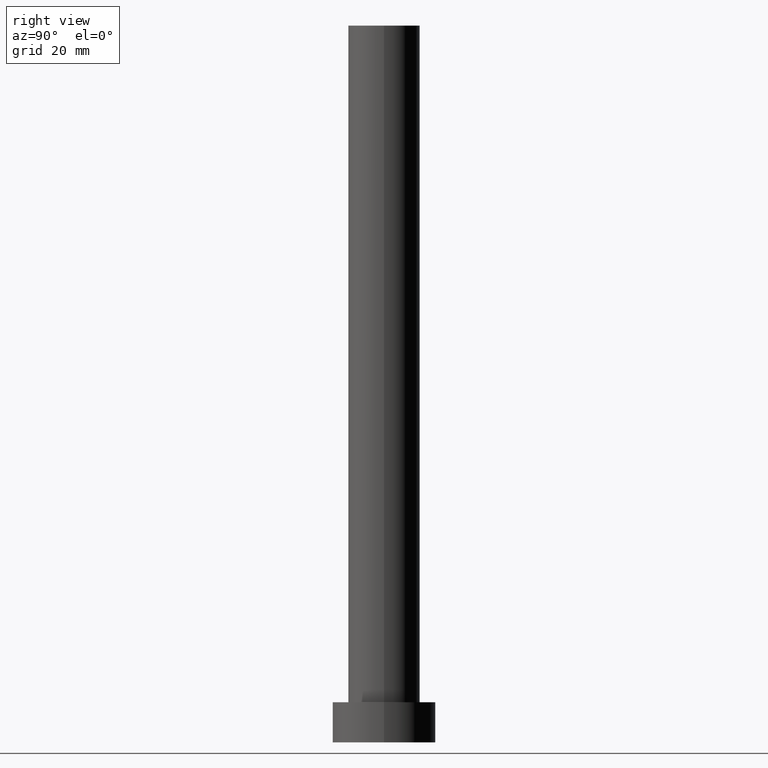
[diagram: clean part render]
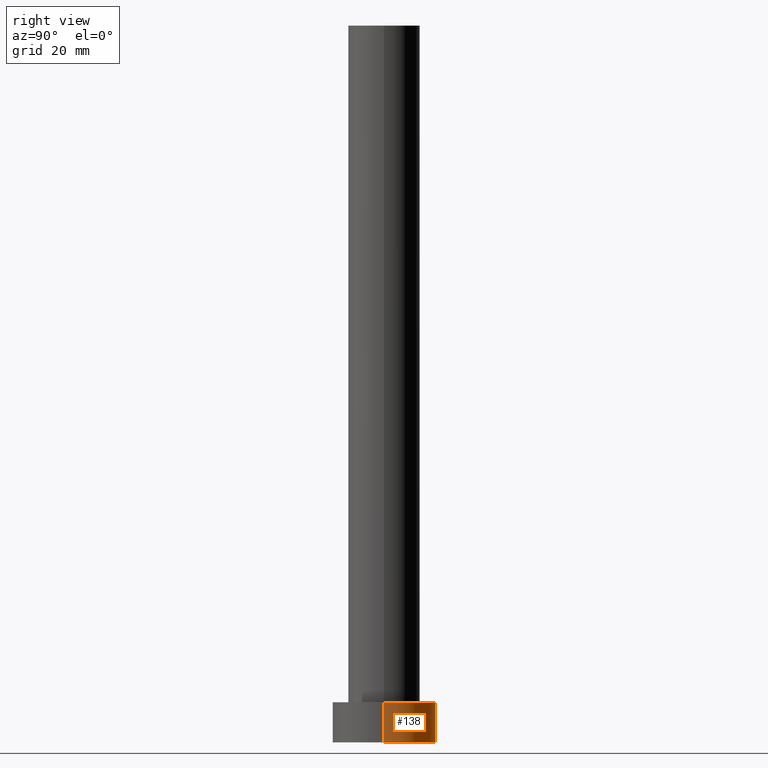
[diagram: same view with one face highlighted and labeled with its STEP entity id]
A machine part, right view. The second image highlights one B-rep face of the part: STEP entity #138.
In plain terms, the highlighted cylindrical surface (partial cylindrical patch) has radius 9 mm, axis along (-0, -0, -1).
Its self-contained STEP definition (entity closure, byte-faithful):
#1 = CARTESIAN_POINT ( 'NONE',  ( 0.000000000000000000, 0.000000000000000000, 0.000000000000000000 ) ) ;
#15 = DIRECTION ( 'NONE',  ( -1.000000000000000000, 0.000000000000000000, 0.000000000000000000 ) ) ;
#26 = EDGE_CURVE ( 'NONE', #91, #145, #249, .T. ) ;
#28 = DIRECTION ( 'NONE',  ( 0.000000000000000000, 0.000000000000000000, 1.000000000000000000 ) ) ;
#29 = CARTESIAN_POINT ( 'NONE',  ( -9.000000000000000000, 0.000000000000000000, 7.000000000000000000 ) ) ;
#32 = VERTEX_POINT ( 'NONE', #149 ) ;
#46 = VECTOR ( 'NONE', #94, 1000.000000000000000 ) ;
#66 = DIRECTION ( 'NONE',  ( 1.000000000000000000, 0.000000000000000000, 0.000000000000000000 ) ) ;
#69 = CARTESIAN_POINT ( 'NONE',  ( 9.000000000000000000, 1.102182119232617714E-15, 7.000000000000000000 ) ) ;
#70 = CYLINDRICAL_SURFACE ( 'NONE', #214, 9.000000000000000000 ) ;
#72 = CARTESIAN_POINT ( 'NONE',  ( 0.000000000000000000, 0.000000000000000000, 7.000000000000000000 ) ) ;
#78 = CARTESIAN_POINT ( 'NONE',  ( 9.000000000000000000, 1.102182119232617714E-15, 7.000000000000000000 ) ) ;
#82 = ORIENTED_EDGE ( 'NONE', *, *, #123, .F. ) ;
#89 = CARTESIAN_POINT ( 'NONE',  ( -9.000000000000000000, 0.000000000000000000, 0.000000000000000000 ) ) ;
#91 = VERTEX_POINT ( 'NONE', #69 ) ;
#92 = LINE ( 'NONE', #29, #46 ) ;
#94 = DIRECTION ( 'NONE',  ( -0.000000000000000000, -0.000000000000000000, -1.000000000000000000 ) ) ;
#110 = VERTEX_POINT ( 'NONE', #89 ) ;
#114 = CARTESIAN_POINT ( 'NONE',  ( 0.000000000000000000, 0.000000000000000000, 7.000000000000000000 ) ) ;
#123 = EDGE_CURVE ( 'NONE', #145, #110, #92, .T. ) ;
#132 = EDGE_LOOP ( 'NONE', ( #206, #197, #182, #82 ) ) ;
#133 = AXIS2_PLACEMENT_3D ( 'NONE', #114, #169, #66 ) ;
#138 = ADVANCED_FACE ( 'NONE', ( #254 ), #70, .T. ) ;
#140 = CIRCLE ( 'NONE', #222, 9.000000000000000000 ) ;
#145 = VERTEX_POINT ( 'NONE', #201 ) ;
#149 = CARTESIAN_POINT ( 'NONE',  ( 9.000000000000000000, 1.102182119232617714E-15, 0.000000000000000000 ) ) ;
#157 = EDGE_CURVE ( 'NONE', #32, #110, #140, .T. ) ;
#169 = DIRECTION ( 'NONE',  ( 0.000000000000000000, 0.000000000000000000, 1.000000000000000000 ) ) ;
#174 = VECTOR ( 'NONE', #185, 1000.000000000000000 ) ;
#178 = DIRECTION ( 'NONE',  ( -0.000000000000000000, -0.000000000000000000, -1.000000000000000000 ) ) ;
#182 = ORIENTED_EDGE ( 'NONE', *, *, #157, .T. ) ;
#185 = DIRECTION ( 'NONE',  ( -0.000000000000000000, -0.000000000000000000, -1.000000000000000000 ) ) ;
#192 = LINE ( 'NONE', #78, #174 ) ;
#197 = ORIENTED_EDGE ( 'NONE', *, *, #217, .T. ) ;
#201 = CARTESIAN_POINT ( 'NONE',  ( -9.000000000000000000, 0.000000000000000000, 7.000000000000000000 ) ) ;
#206 = ORIENTED_EDGE ( 'NONE', *, *, #26, .F. ) ;
#214 = AXIS2_PLACEMENT_3D ( 'NONE', #72, #178, #15 ) ;
#217 = EDGE_CURVE ( 'NONE', #91, #32, #192, .T. ) ;
#222 = AXIS2_PLACEMENT_3D ( 'NONE', #1, #28, #226 ) ;
#226 = DIRECTION ( 'NONE',  ( 1.000000000000000000, 0.000000000000000000, 0.000000000000000000 ) ) ;
#249 = CIRCLE ( 'NONE', #133, 9.000000000000000000 ) ;
#254 = FACE_OUTER_BOUND ( 'NONE', #132, .T. ) ;